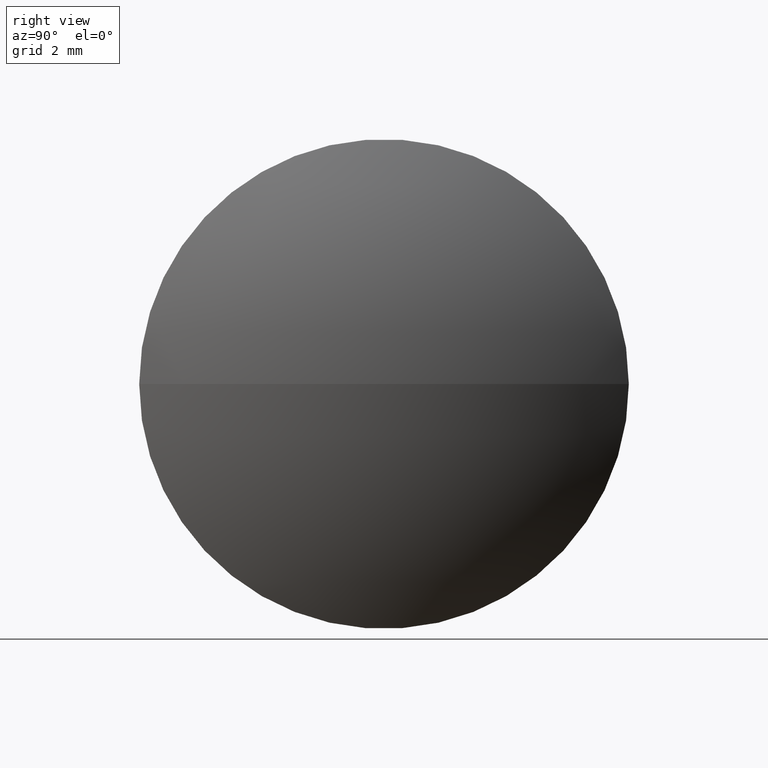
[diagram: clean part render]
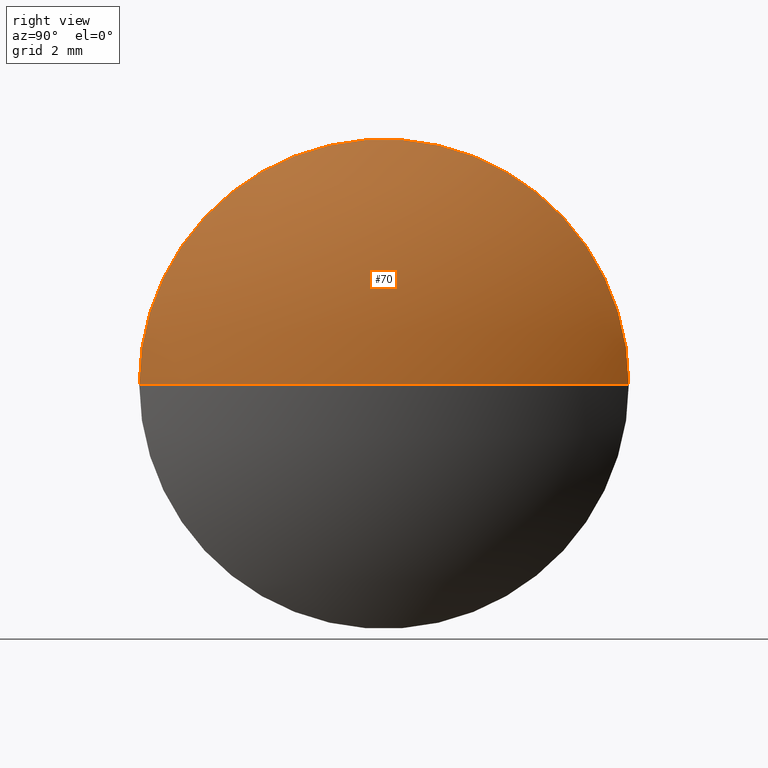
[diagram: same view with one face highlighted and labeled with its STEP entity id]
A machine part, right view. The second image highlights one B-rep face of the part: STEP entity #70.
In plain terms, the highlighted spherical surface has radius 9.4283 mm.
Its self-contained STEP definition (entity closure, byte-faithful):
#3 = CARTESIAN_POINT ( 'NONE',  ( 27.04535757267421700, 19.14020197763176500, 0.0000000000000000000 ) ) ;
#16 = DIRECTION ( 'NONE',  ( 1.822678674337698300E-031, -1.224646799147353200E-016, 1.000000000000000000 ) ) ;
#21 = ORIENTED_EDGE ( 'NONE', *, *, #56, .F. ) ;
#28 = CIRCLE ( 'NONE', #301, 9.428301393728306200 ) ;
#29 = DIRECTION ( 'NONE',  ( -1.000000000000000000, 0.0000000000000000000, 0.0000000000000000000 ) ) ;
#32 = VERTEX_POINT ( 'NONE', #112 ) ;
#33 = DIRECTION ( 'NONE',  ( 1.471928741803474900E-015, -1.000000000000000000, 0.0000000000000000000 ) ) ;
#36 = EDGE_CURVE ( 'NONE', #32, #249, #113, .T. ) ;
#56 = EDGE_CURVE ( 'NONE', #98, #249, #259, .T. ) ;
#69 = SPHERICAL_SURFACE ( 'NONE', #161, 9.428301393728306200 ) ;
#70 = ADVANCED_FACE ( 'NONE', ( #283 ), #69, .T. ) ;
#96 = CARTESIAN_POINT ( 'NONE',  ( 35.03865896640255100, 19.14020197763177600, 0.0000000000000000000 ) ) ;
#98 = VERTEX_POINT ( 'NONE', #198 ) ;
#103 = CARTESIAN_POINT ( 'NONE',  ( 35.03865896640254400, 24.14020197763177200, 6.123233995736756400E-016 ) ) ;
#106 = DIRECTION ( 'NONE',  ( -0.0000000000000000000, 0.0000000000000000000, 1.000000000000000000 ) ) ;
#112 = CARTESIAN_POINT ( 'NONE',  ( 36.47365896640251700, 19.14020197763177900, 0.0000000000000000000 ) ) ;
#113 = CIRCLE ( 'NONE', #128, 9.428301393728306200 ) ;
#124 = EDGE_CURVE ( 'NONE', #32, #98, #28, .T. ) ;
#125 = DIRECTION ( 'NONE',  ( -1.000000000000000000, -1.488330084728689300E-015, -0.0000000000000000000 ) ) ;
#128 = AXIS2_PLACEMENT_3D ( 'NONE', #252, #16, #253 ) ;
#144 = AXIS2_PLACEMENT_3D ( 'NONE', #96, #125, #284 ) ;
#161 = AXIS2_PLACEMENT_3D ( 'NONE', #3, #106, #33 ) ;
#176 = ORIENTED_EDGE ( 'NONE', *, *, #36, .T. ) ;
#177 = DIRECTION ( 'NONE',  ( 0.0000000000000000000, 0.0000000000000000000, -1.000000000000000000 ) ) ;
#181 = ORIENTED_EDGE ( 'NONE', *, *, #124, .F. ) ;
#198 = CARTESIAN_POINT ( 'NONE',  ( 35.03865896640255800, 14.14020197763178500, 0.0000000000000000000 ) ) ;
#199 = CARTESIAN_POINT ( 'NONE',  ( 27.04535757267421700, 19.14020197763176500, 0.0000000000000000000 ) ) ;
#249 = VERTEX_POINT ( 'NONE', #103 ) ;
#252 = CARTESIAN_POINT ( 'NONE',  ( 27.04535757267421700, 19.14020197763176500, 0.0000000000000000000 ) ) ;
#253 = DIRECTION ( 'NONE',  ( 0.0000000000000000000, -1.000000000000000000, -1.224646799147353200E-016 ) ) ;
#259 = CIRCLE ( 'NONE', #144, 5.000000000000002700 ) ;
#277 = EDGE_LOOP ( 'NONE', ( #181, #176, #21 ) ) ;
#283 = FACE_OUTER_BOUND ( 'NONE', #277, .T. ) ;
#284 = DIRECTION ( 'NONE',  ( 1.387778780781444900E-015, -1.000000000000000000, 0.0000000000000000000 ) ) ;
#301 = AXIS2_PLACEMENT_3D ( 'NONE', #199, #177, #29 ) ;